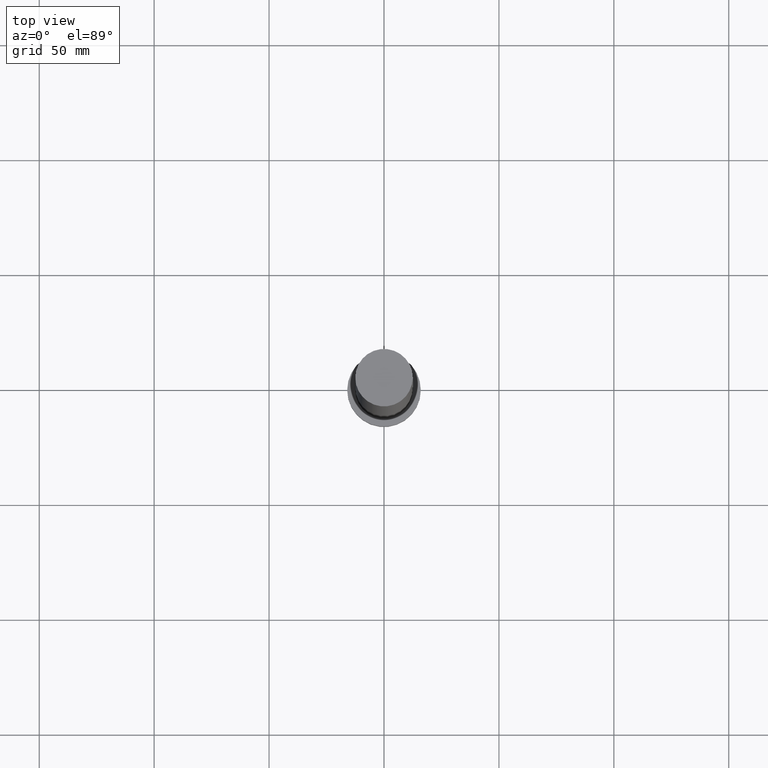
[diagram: clean part render]
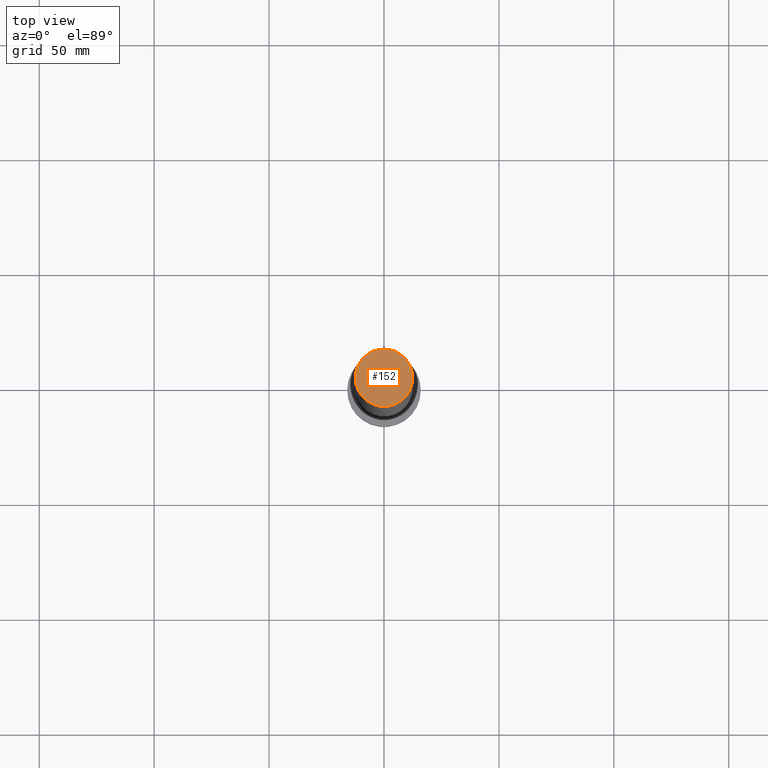
[diagram: same view with one face highlighted and labeled with its STEP entity id]
A machine part, top view. The second image highlights one B-rep face of the part: STEP entity #152.
In plain terms, the highlighted planar face has unit normal (0, 0, 1).
Its self-contained STEP definition (entity closure, byte-faithful):
#22 = VERTEX_POINT ( 'NONE', #207 ) ;
#39 = EDGE_CURVE ( 'NONE', #22, #49, #135, .T. ) ;
#40 = DIRECTION ( 'NONE',  ( 1.000000000000000000, 0.000000000000000000, 0.000000000000000000 ) ) ;
#49 = VERTEX_POINT ( 'NONE', #241 ) ;
#62 = DIRECTION ( 'NONE',  ( 0.000000000000000000, 0.000000000000000000, 1.000000000000000000 ) ) ;
#65 = CIRCLE ( 'NONE', #205, 12.50000000000000000 ) ;
#76 = PLANE ( 'NONE',  #94 ) ;
#84 = DIRECTION ( 'NONE',  ( 0.000000000000000000, 0.000000000000000000, 1.000000000000000000 ) ) ;
#91 = CARTESIAN_POINT ( 'NONE',  ( 0.000000000000000000, 0.000000000000000000, 315.0000000000000000 ) ) ;
#94 = AXIS2_PLACEMENT_3D ( 'NONE', #230, #62, #143 ) ;
#101 = DIRECTION ( 'NONE',  ( 0.000000000000000000, 0.000000000000000000, 1.000000000000000000 ) ) ;
#116 = ORIENTED_EDGE ( 'NONE', *, *, #39, .T. ) ;
#135 = CIRCLE ( 'NONE', #190, 12.50000000000000000 ) ;
#143 = DIRECTION ( 'NONE',  ( 1.000000000000000000, 0.000000000000000000, -0.000000000000000000 ) ) ;
#152 = ADVANCED_FACE ( 'NONE', ( #158 ), #76, .T. ) ;
#158 = FACE_OUTER_BOUND ( 'NONE', #182, .T. ) ;
#164 = DIRECTION ( 'NONE',  ( 1.000000000000000000, 0.000000000000000000, 0.000000000000000000 ) ) ;
#182 = EDGE_LOOP ( 'NONE', ( #213, #116 ) ) ;
#190 = AXIS2_PLACEMENT_3D ( 'NONE', #91, #101, #40 ) ;
#205 = AXIS2_PLACEMENT_3D ( 'NONE', #234, #84, #164 ) ;
#207 = CARTESIAN_POINT ( 'NONE',  ( 12.50000000000000000, 1.530808498934191521E-15, 315.0000000000000000 ) ) ;
#213 = ORIENTED_EDGE ( 'NONE', *, *, #255, .T. ) ;
#230 = CARTESIAN_POINT ( 'NONE',  ( 0.000000000000000000, 0.000000000000000000, 315.0000000000000000 ) ) ;
#234 = CARTESIAN_POINT ( 'NONE',  ( 0.000000000000000000, 0.000000000000000000, 315.0000000000000000 ) ) ;
#241 = CARTESIAN_POINT ( 'NONE',  ( -12.50000000000000000, 0.000000000000000000, 315.0000000000000000 ) ) ;
#255 = EDGE_CURVE ( 'NONE', #49, #22, #65, .T. ) ;